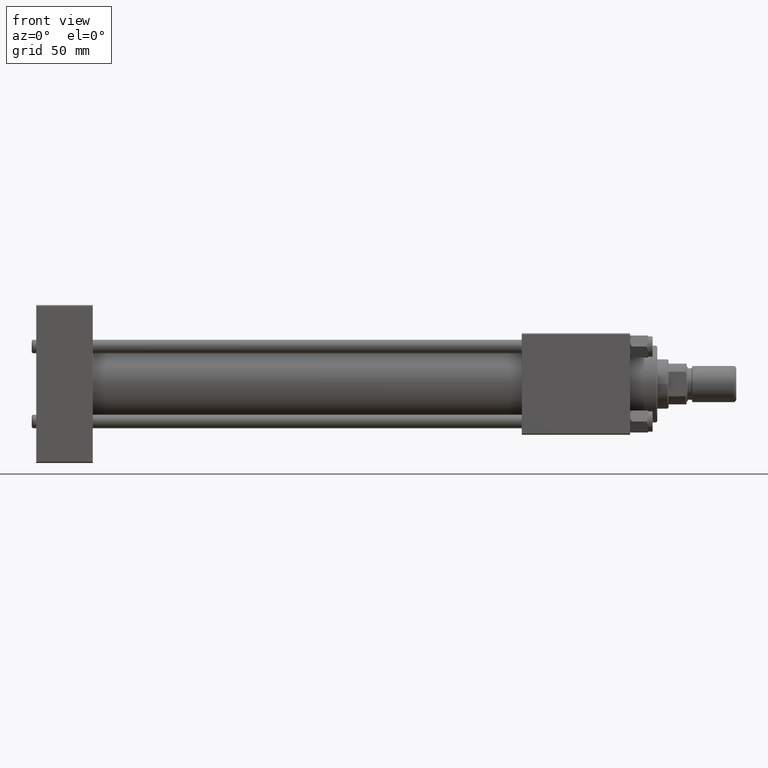
[diagram: clean part render]
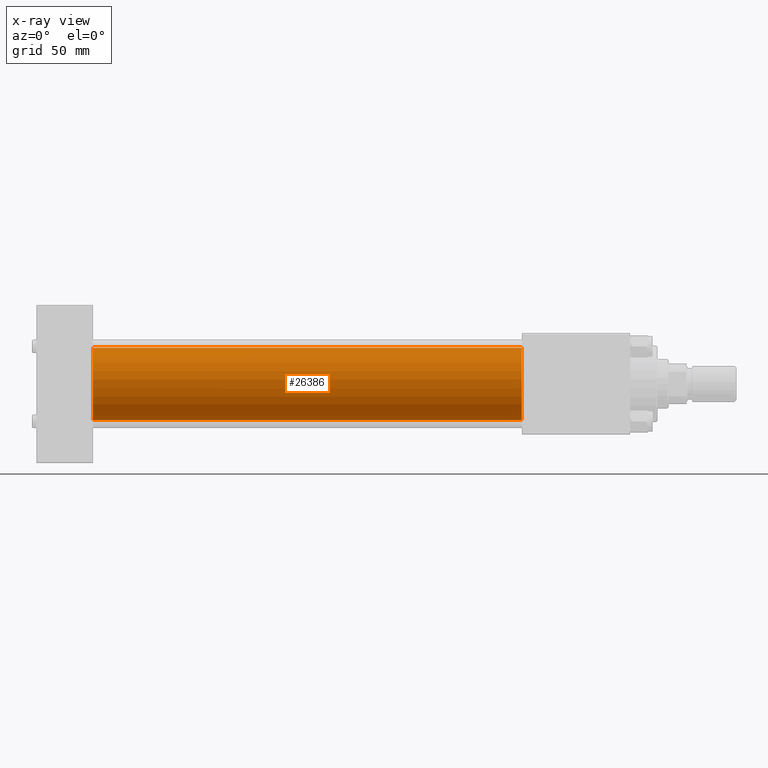
[diagram: x-ray — body ghosted, one internal face saturated and labeled with its STEP entity id]
A machine part, front view, then the same camera in x-ray: the body is ghosted and one INTERNAL B-rep face — a face not visible from any outside direction — is saturated and labeled: STEP entity #26386.
In plain terms, the highlighted cylindrical surface (edge-blend (fillet) strip) has radius 16 mm, axis along (-1, -0, -0).
Its self-contained STEP definition (entity closure, byte-faithful):
#2518 = ORIENTED_EDGE ( 'NONE', *, *, #50164, .F. ) ;
#2995 = CIRCLE ( 'NONE', #7185, 16.00000000000000000 ) ;
#3940 = ORIENTED_EDGE ( 'NONE', *, *, #15090, .F. ) ;
#5880 = DIRECTION ( 'NONE',  ( 1.000000000000000000, 0.000000000000000000, 0.000000000000000000 ) ) ;
#6715 = DIRECTION ( 'NONE',  ( -1.000000000000000000, -0.000000000000000000, -0.000000000000000000 ) ) ;
#7185 = AXIS2_PLACEMENT_3D ( 'NONE', #26279, #26543, #30783 ) ;
#8700 = AXIS2_PLACEMENT_3D ( 'NONE', #43042, #6715, #38281 ) ;
#10689 = CYLINDRICAL_SURFACE ( 'NONE', #8700, 16.00000000000000000 ) ;
#10787 = CARTESIAN_POINT ( 'NONE',  ( 215.0000000000000000, -2.602085213965210642E-15, 16.00000000000000000 ) ) ;
#11823 = VECTOR ( 'NONE', #47840, 1000.000000000000000 ) ;
#11868 = VERTEX_POINT ( 'NONE', #25692 ) ;
#14298 = AXIS2_PLACEMENT_3D ( 'NONE', #26563, #5880, #26298 ) ;
#15090 = EDGE_CURVE ( 'NONE', #11868, #45283, #16838, .T. ) ;
#16503 = EDGE_CURVE ( 'NONE', #50450, #45283, #47316, .T. ) ;
#16838 = CIRCLE ( 'NONE', #14298, 16.00000000000000000 ) ;
#25692 = CARTESIAN_POINT ( 'NONE',  ( 25.00000000000000000, -2.602085213965210642E-15, 16.00000000000000000 ) ) ;
#26036 = VECTOR ( 'NONE', #38908, 1000.000000000000000 ) ;
#26279 = CARTESIAN_POINT ( 'NONE',  ( 215.0000000000000000, -2.602085213965210642E-15, 0.000000000000000000 ) ) ;
#26298 = DIRECTION ( 'NONE',  ( 0.000000000000000000, 0.000000000000000000, -1.000000000000000000 ) ) ;
#26386 = ADVANCED_FACE ( 'NONE', ( #51282 ), #10689, .F. ) ;
#26543 = DIRECTION ( 'NONE',  ( 1.000000000000000000, 0.000000000000000000, 0.000000000000000000 ) ) ;
#26563 = CARTESIAN_POINT ( 'NONE',  ( 25.00000000000000000, -2.602085213965210642E-15, 0.000000000000000000 ) ) ;
#27273 = VERTEX_POINT ( 'NONE', #32692 ) ;
#27424 = CARTESIAN_POINT ( 'NONE',  ( 215.0000000000000000, -6.426503353294456087E-16, -16.00000000000000000 ) ) ;
#30031 = EDGE_LOOP ( 'NONE', ( #41977, #49965, #3940, #2518 ) ) ;
#30783 = DIRECTION ( 'NONE',  ( 0.000000000000000000, 0.000000000000000000, -1.000000000000000000 ) ) ;
#32692 = CARTESIAN_POINT ( 'NONE',  ( 215.0000000000000000, -2.602085213965210642E-15, 16.00000000000000000 ) ) ;
#32850 = LINE ( 'NONE', #10787, #26036 ) ;
#34347 = CARTESIAN_POINT ( 'NONE',  ( 25.00000000000000000, -6.426503353294456087E-16, -16.00000000000000000 ) ) ;
#38281 = DIRECTION ( 'NONE',  ( 0.000000000000000000, 0.000000000000000000, 1.000000000000000000 ) ) ;
#38586 = CARTESIAN_POINT ( 'NONE',  ( 215.0000000000000000, -6.426503353294456087E-16, -16.00000000000000000 ) ) ;
#38908 = DIRECTION ( 'NONE',  ( -1.000000000000000000, -0.000000000000000000, -0.000000000000000000 ) ) ;
#41977 = ORIENTED_EDGE ( 'NONE', *, *, #44490, .T. ) ;
#43042 = CARTESIAN_POINT ( 'NONE',  ( 215.0000000000000000, -2.602085213965210642E-15, 0.000000000000000000 ) ) ;
#44490 = EDGE_CURVE ( 'NONE', #27273, #50450, #2995, .T. ) ;
#45283 = VERTEX_POINT ( 'NONE', #34347 ) ;
#47316 = LINE ( 'NONE', #27424, #11823 ) ;
#47840 = DIRECTION ( 'NONE',  ( -1.000000000000000000, -0.000000000000000000, -0.000000000000000000 ) ) ;
#49965 = ORIENTED_EDGE ( 'NONE', *, *, #16503, .T. ) ;
#50164 = EDGE_CURVE ( 'NONE', #27273, #11868, #32850, .T. ) ;
#50450 = VERTEX_POINT ( 'NONE', #38586 ) ;
#51282 = FACE_OUTER_BOUND ( 'NONE', #30031, .T. ) ;